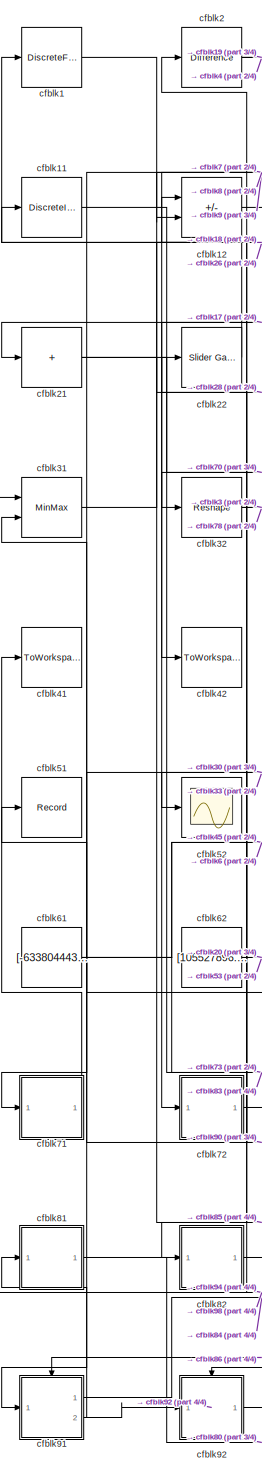
[diagram: root canvas - part 1/4, left side, full height]
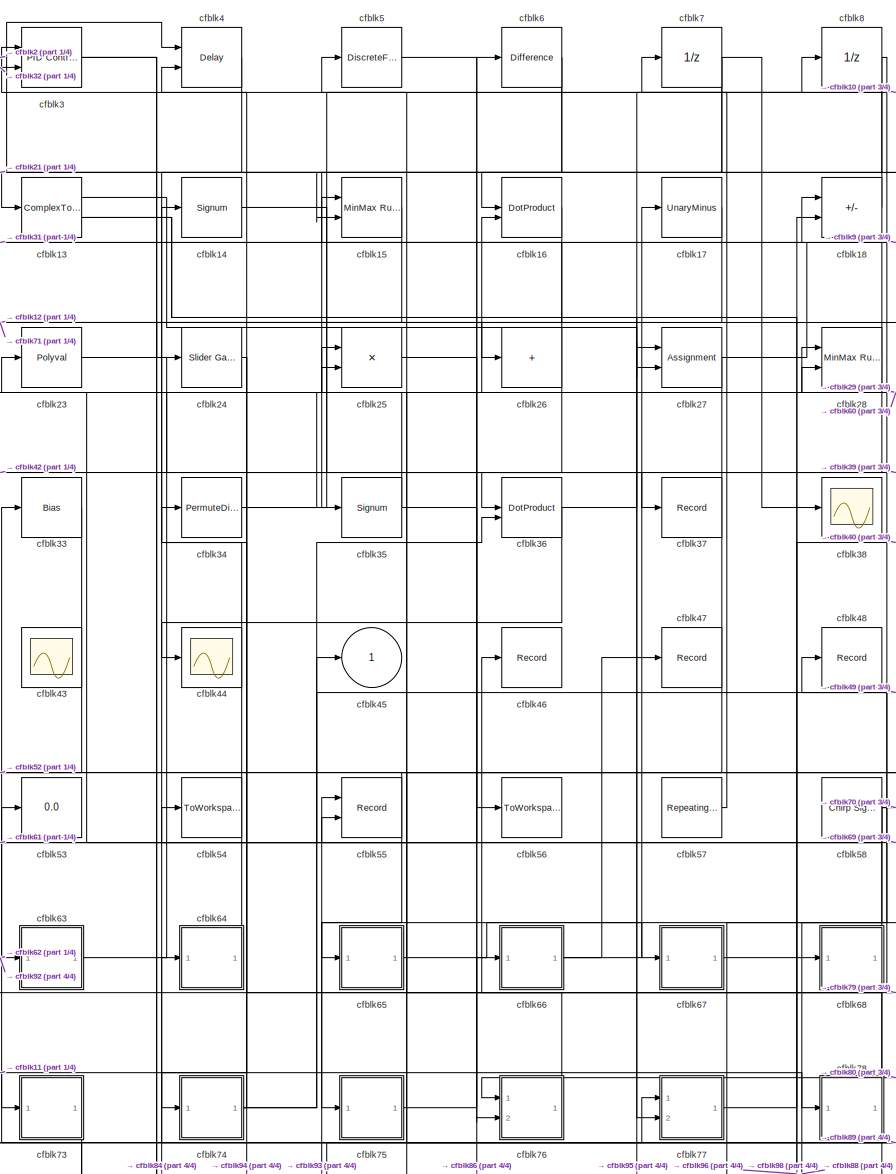
[diagram: root canvas - part 2/4, center side, full height]
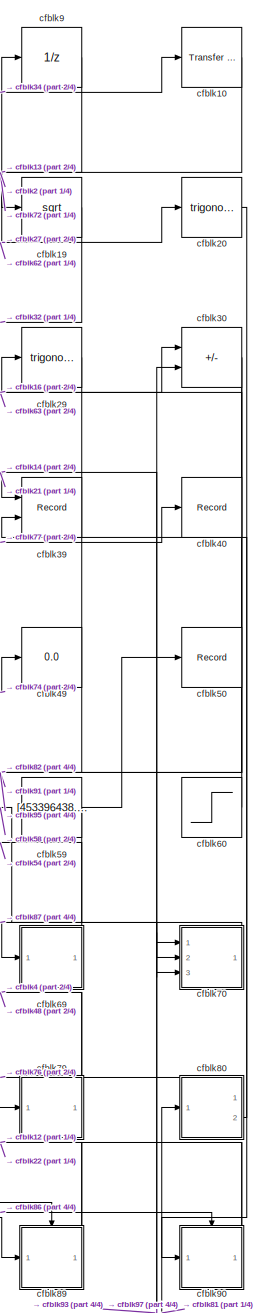
[diagram: root canvas - part 3/4, right side, full height]
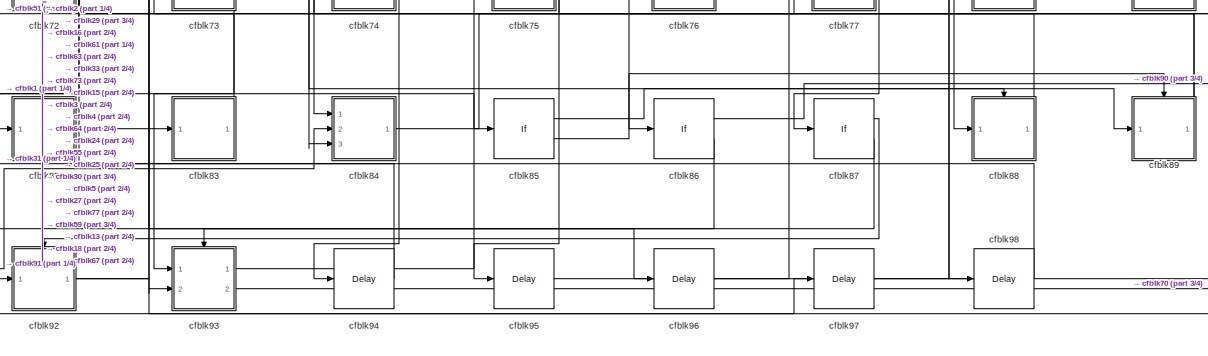
[diagram: root canvas - part 4/4, full width, bottom band]
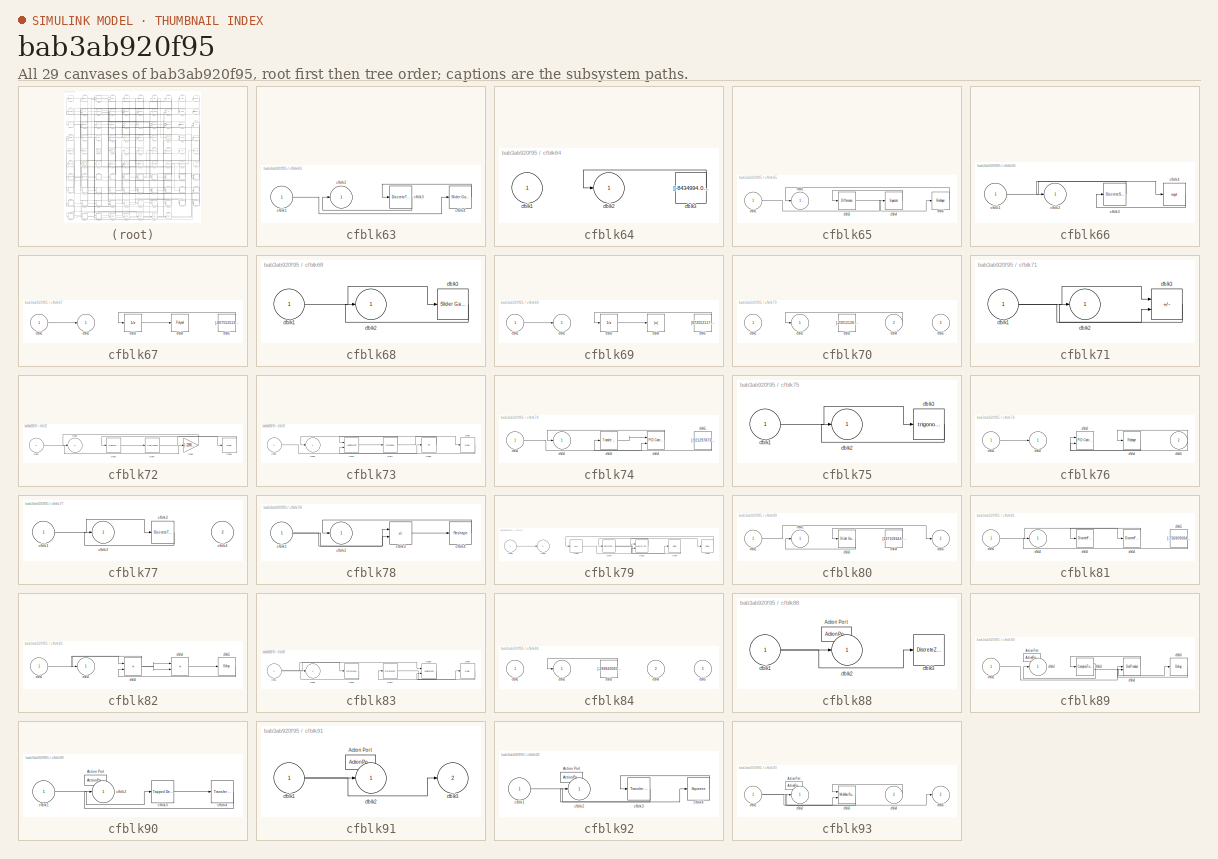
[diagram: thumbnail index - all 29 canvases of the model, root first then tree order]
MODEL slx_bab3ab920f95
KIND model
CONFIG AbsTol = auto
CONFIG EnableMultiTasking = off
CONFIG FixedStep = auto
CONFIG MaxStep = auto
CONFIG MinStep = auto
CONFIG RelTol = 1e-3
CONFIG SampleTimeConstraint = Unconstrained
CONFIG SolverName = VariableStepAuto
CONFIG StartTime = 0.0
CONFIG StopTime = 10.0
BLOCK [DiscreteFir] cfblk1
  InputPortMap = u0
  OutputPortMap = o0
  Ports = [1, 1]
  SampleTime = 1
BLOCK [Reference] cfblk10  REF=simulink/Discrete/Transfer Fcn
Real Zero
  Ports = [1, 1]
  SourceBlock = simulink/Discrete/Transfer Fcn\nReal Zero
  SourceProductBaseCode = SL
  SourceType = Transfer Fcn Real Zero
BLOCK [DiscreteIntegrator] cfblk11
  ICPrevOutput = DiscIntNeverNeededParam
  ICPrevScaledInput = DiscIntNeverNeededParam
  InitialConditionSetting = Auto
  Ports = [1, 1]
BLOCK [Sum] cfblk12
  IconShape = rectangular
  Inputs = +-
  Ports = [2, 1]
BLOCK [ComplexToRealImag] cfblk13
  Ports = [1, 2]
BLOCK [Signum] cfblk14
BLOCK [Reference] cfblk15  REF=simulink/Math
Operations/MinMax
Running
Resettable
  Ports = [2, 1]
  SourceBlock = simulink/Math\nOperations/MinMax\nRunning\nResettable
  SourceProductBaseCode = SL
  SourceType = MinMax Running Resettable
BLOCK [DotProduct] cfblk16
  OutDataTypeStr = Inherit: Inherit via internal rule
BLOCK [UnaryMinus] cfblk17
BLOCK [Sum] cfblk18
  IconShape = rectangular
  Inputs = +-
  Ports = [2, 1]
BLOCK [Sqrt] cfblk19
BLOCK [Reference] cfblk2  REF=simulink/Discrete/Difference
  Ports = [1, 1]
  SourceBlock = simulink/Discrete/Difference
  SourceProductBaseCode = SL
  SourceType = Difference
BLOCK [Trigonometry] cfblk20
  Ports = [1, 1]
BLOCK [Sum] cfblk21
  IconShape = rectangular
  Inputs = +
  Ports = [1, 1]
BLOCK [Reference] cfblk22  REF=simulink/Math
Operations/Slider
Gain
  Ports = [1, 1]
  SourceBlock = simulink/Math\nOperations/Slider\nGain
  SourceProductBaseCode = SL
  SourceType = Slider Gain
BLOCK [Polyval] cfblk23
  Coefs = [ +2.081618890e-019, -1.441693666e-014, +4.719686976e-010, -8.536869453e-006, +1.621573104e-001, -8.087801117e+001 ]
BLOCK [Reference] cfblk24  REF=simulink/Math
Operations/Slider
Gain
  Ports = [1, 1]
  SourceBlock = simulink/Math\nOperations/Slider\nGain
  SourceProductBaseCode = SL
  SourceType = Slider Gain
BLOCK [Product] cfblk25
  Inputs = **
  Ports = [2, 1]
BLOCK [Sum] cfblk26
  IconShape = rectangular
  Inputs = +
  Ports = [1, 1]
BLOCK [Assignment] cfblk27
  DiagnosticForDimensions = Warning
  IndexOptions = Index vector (dialog)
  Indices = 1
  OutputSizes = 1
  Ports = [2, 1]
BLOCK [Reference] cfblk28  REF=simulink/Math
Operations/MinMax
Running
Resettable
  Ports = [2, 1]
  SourceBlock = simulink/Math\nOperations/MinMax\nRunning\nResettable
  SourceProductBaseCode = SL
  SourceType = MinMax Running Resettable
BLOCK [Trigonometry] cfblk29
  Ports = [1, 1]
BLOCK [Reference] cfblk3  REF=slpidlib/PID Controller (2DOF)
  Ports = [2, 1]
  SourceBlock = slpidlib/PID Controller (2DOF)
  SourceProductBaseCode = SL
  SourceType = PID 2dof
BLOCK [Sum] cfblk30
  IconShape = rectangular
  Inputs = +-
  Ports = [2, 1]
BLOCK [MinMax] cfblk31
  Inputs = 2
  Ports = [2, 1]
BLOCK [Reshape] cfblk32
  Ports = [1, 1]
BLOCK [Bias] cfblk33
  Bias = [-708521417.509313]
  SaturateOnIntegerOverflow = off
BLOCK [PermuteDimensions] cfblk34
BLOCK [Signum] cfblk35
BLOCK [DotProduct] cfblk36
  OutDataTypeStr = Inherit: Inherit via internal rule
BLOCK [Record] cfblk37
  FileSettingsInternal = {"entries":[{"content":{"excelSettings":{"content":{},"type":"Streamout.ExcelSettings"}},"type":"Streamout.FileSettingStorage","uuid":"6aecb46b-7e3a-42a5-a532-44c38a0d56ca"}],"packageUris":["http://schema.mathworks.com/mf0/streamout_blocks/R2020a"],"version":"1.0"}
  Ports = [1]
  SignalsInternal = {"entries":[{"content":{"signals":[{"content":{"blockPath":["sampleModel294/cfblk37"],"channel":[],"dimensions":[1],"domain":"sampleModel294/cfblk37","lineColor":"#ff13a6","plots":[1],"port":1,"sid":[""],"signalID":12610,"signalName":"cfblk23"},"type":"RecordBlkView.Signal","uuid":"15af59c0-98d0-4b52-828e-53dac497fc87"}]},"type":"RecordBlkView.InputSignals","uuid":"b73e7cbd-e87e-4b80-9618-eb373318...<+98ch>
  VisualizationBindings = {"sparklinesplugin":{"info":[{"bindingParametersList":[],"subplotID":1}]}}
BLOCK [Scope] cfblk38
  Floating = off
  NumInputPorts = 1
  Ports = [1]
BLOCK [Record] cfblk39
  CompatibilityTag = XY
  FileSettingsInternal = {"entries":[{"content":{"excelSettings":{"content":{},"type":"Streamout.ExcelSettings"}},"type":"Streamout.FileSettingStorage","uuid":"2bb493f2-5c39-4865-b1a7-6070a2b50932"}],"packageUris":["http://schema.mathworks.com/mf0/streamout_blocks/R2020a"],"version":"1.0"}
  Layout = [1 1]
  Ports = [2]
  SignalsInternal = {"entries":[{"content":{"signals":[{"content":{"blockPath":["sampleModel294/cfblk39"],"channel":[],"dimensions":[1],"domain":"sampleModel294/cfblk39","lineColor":"#a2142f","plots":[1],"port":1,"sid":[""],"signalID":12614,"signalName":"cfblk14"},"type":"RecordBlkView.Signal","uuid":"45daaf46-2a0b-471e-a7b5-0b191f09f17a"},{"content":{"blockPath":["sampleModel294/cfblk39"],"channel":[],"dimensions":[...<+387ch>
  VisualizationBindings = {"xyplotplugin":{"info":[{"series":[{"bindingParametersList":[{"parameter":"X-Axis","signalID":12614,"signalName":"cfblk14"},{"parameter":"Y-Axis","signalID":12618,"signalName":"cfblk80:2"}],"seriesID":16195}],"subplotID":1}]}}
BLOCK [Delay] cfblk4
  InputPortMap = u0,e6
  Ports = [2, 1]
  SampleTime = 1
  ShowEnablePort = on
BLOCK [Record] cfblk40
  FileSettingsInternal = {"entries":[{"content":{"excelSettings":{"content":{},"type":"Streamout.ExcelSettings"}},"type":"Streamout.FileSettingStorage","uuid":"b2907d0f-a6a5-425f-99cf-7f8aa50df710"}],"packageUris":["http://schema.mathworks.com/mf0/streamout_blocks/R2020a"],"version":"1.0"}
  Ports = [1]
  SignalsInternal = {"entries":[{"content":{"signals":[{"content":{"blockPath":["sampleModel294/cfblk40"],"channel":[],"dimensions":[1],"domain":"sampleModel294/cfblk40","lineColor":"#0072bd","plots":[1],"port":1,"sid":[""],"signalID":12622,"signalName":"cfblk77"},"type":"RecordBlkView.Signal","uuid":"bb33c2fe-3e85-4b8c-a1c3-f1730c036eec"}]},"type":"RecordBlkView.InputSignals","uuid":"3f39614f-e5c9-4995-a26a-31c2ad2e...<+98ch>
  VisualizationBindings = {"sparklinesplugin":{"info":[{"bindingParametersList":[],"subplotID":1}]}}
BLOCK [ToWorkspace] cfblk41
  FixptAsFi = on
  MaxDataPoints = inf
  Ports = [1]
  SampleTime = -1
  SaveFormat = Timeseries
  VariableName = ktlnrjp
BLOCK [ToWorkspace] cfblk42
  FixptAsFi = on
  MaxDataPoints = inf
  Ports = [1]
  SampleTime = -1
  SaveFormat = Timeseries
  VariableName = sdwhgqs
BLOCK [Scope] cfblk43
  Floating = on
  NumInputPorts = 1
  Ports = []
BLOCK [Scope] cfblk44
  Floating = off
  NumInputPorts = 1
  Ports = [1]
BLOCK [Outport] cfblk45
BLOCK [Record] cfblk46
  FileSettingsInternal = {"entries":[{"content":{"excelSettings":{"content":{},"type":"Streamout.ExcelSettings"}},"type":"Streamout.FileSettingStorage","uuid":"cd732ad3-e538-45d9-afe5-a77d702ee905"}],"packageUris":["http://schema.mathworks.com/mf0/streamout_blocks/R2020a"],"version":"1.0"}
  Ports = [1]
  SignalsInternal = {"entries":[{"content":{"signals":[{"content":{"blockPath":["sampleModel294/cfblk46"],"channel":[],"dimensions":[1],"domain":"sampleModel294/cfblk46","lineColor":"#d95319","plots":[1],"port":1,"sid":[""],"signalID":12626,"signalName":"cfblk76"},"type":"RecordBlkView.Signal","uuid":"70741a1c-61cb-45a9-bdae-ba2ff29e5420"}]},"type":"RecordBlkView.InputSignals","uuid":"5321aa93-feca-455b-afcb-12fe4fd2...<+98ch>
  VisualizationBindings = {"sparklinesplugin":{"info":[{"bindingParametersList":[],"subplotID":1}]}}
BLOCK [Record] cfblk47
  FileSettingsInternal = {"entries":[{"content":{"excelSettings":{"content":{},"type":"Streamout.ExcelSettings"}},"type":"Streamout.FileSettingStorage","uuid":"f76ab7a1-73ab-47ed-b3a6-fe286ed2b7c9"}],"packageUris":["http://schema.mathworks.com/mf0/streamout_blocks/R2020a"],"version":"1.0"}
  Ports = [1]
  SignalsInternal = {"entries":[{"content":{"signals":[{"content":{"blockPath":["sampleModel294/cfblk47"],"channel":[],"dimensions":[1],"domain":"sampleModel294/cfblk47","lineColor":"#edb120","plots":[1],"port":1,"sid":[""],"signalID":12630,"signalName":"cfblk66"},"type":"RecordBlkView.Signal","uuid":"bfbfe2d6-6b31-4dad-96da-f0bbbe5ea954"}]},"type":"RecordBlkView.InputSignals","uuid":"1e42c149-03e4-4ab4-aa20-d210f904...<+98ch>
  VisualizationBindings = {"sparklinesplugin":{"info":[{"bindingParametersList":[],"subplotID":1}]}}
BLOCK [Record] cfblk48
  FileSettingsInternal = {"entries":[{"content":{"excelSettings":{"content":{},"type":"Streamout.ExcelSettings"}},"type":"Streamout.FileSettingStorage","uuid":"6cfbbc04-a925-4993-b607-e2fba4d550c3"}],"packageUris":["http://schema.mathworks.com/mf0/streamout_blocks/R2020a"],"version":"1.0"}
  Ports = [1]
  SignalsInternal = {"entries":[{"content":{"signals":[{"content":{"blockPath":["sampleModel294/cfblk48"],"channel":[],"dimensions":[1],"domain":"sampleModel294/cfblk48","lineColor":"#7e2f8e","plots":[1],"port":1,"sid":[""],"signalID":12634,"signalName":"cfblk79"},"type":"RecordBlkView.Signal","uuid":"5aff72a8-fe42-485d-8774-9a0131f30b30"}]},"type":"RecordBlkView.InputSignals","uuid":"8c8a5ed5-a484-4f3b-860e-beb86dd7...<+98ch>
  VisualizationBindings = {"sparklinesplugin":{"info":[{"bindingParametersList":[],"subplotID":1}]}}
BLOCK [Display] cfblk49
  Decimation = 1
  Ports = [1]
BLOCK [DiscreteFir] cfblk5
  InputPortMap = u0
  OutputPortMap = o0
  Ports = [1, 1]
  SampleTime = 1
BLOCK [Record] cfblk50
  FileSettingsInternal = {"entries":[{"content":{"excelSettings":{"content":{},"type":"Streamout.ExcelSettings"}},"type":"Streamout.FileSettingStorage","uuid":"f4a4ff15-b9fc-4301-9191-1d9923c924a8"}],"packageUris":["http://schema.mathworks.com/mf0/streamout_blocks/R2020a"],"version":"1.0"}
  Ports = [1]
  SignalsInternal = {"entries":[{"content":{"signals":[{"content":{"blockPath":["sampleModel294/cfblk50"],"channel":[],"dimensions":[1],"domain":"sampleModel294/cfblk50","lineColor":"#77ac30","plots":[1],"port":1,"sid":[""],"signalID":12638,"signalName":"cfblk59"},"type":"RecordBlkView.Signal","uuid":"75cd7700-a134-4a57-a005-3fc69aa79c35"}]},"type":"RecordBlkView.InputSignals","uuid":"2ed5b24f-e730-4d06-a240-75e588f6...<+98ch>
  VisualizationBindings = {"sparklinesplugin":{"info":[{"bindingParametersList":[],"subplotID":1}]}}
BLOCK [Record] cfblk51
  FileSettingsInternal = {"entries":[{"content":{"excelSettings":{"content":{},"type":"Streamout.ExcelSettings"}},"type":"Streamout.FileSettingStorage","uuid":"866b7732-f010-4150-946a-9813c49afba2"}],"packageUris":["http://schema.mathworks.com/mf0/streamout_blocks/R2020a"],"version":"1.0"}
  Ports = [1]
  SignalsInternal = {"entries":[{"content":{"signals":[{"content":{"blockPath":["sampleModel294/cfblk51"],"channel":[],"dimensions":[1],"domain":"sampleModel294/cfblk51","lineColor":"#4dbeee","plots":[1],"port":1,"sid":[""],"signalID":12642,"signalName":"cfblk83"},"type":"RecordBlkView.Signal","uuid":"32350658-b55d-479e-84c8-becb706a3288"}]},"type":"RecordBlkView.InputSignals","uuid":"f2652580-502e-4ec9-ac91-15a8f080...<+98ch>
  VisualizationBindings = {"sparklinesplugin":{"info":[{"bindingParametersList":[],"subplotID":1}]}}
BLOCK [Scope] cfblk52
  Floating = off
  NumInputPorts = 1
  Ports = [1]
BLOCK [Display] cfblk53
  Decimation = 1
  Ports = [1]
BLOCK [ToWorkspace] cfblk54
  FixptAsFi = on
  MaxDataPoints = inf
  Ports = [1]
  SampleTime = -1
  SaveFormat = Timeseries
  VariableName = abrlvhy
BLOCK [Record] cfblk55
  CompatibilityTag = XY
  FileSettingsInternal = {"entries":[{"content":{"excelSettings":{"content":{},"type":"Streamout.ExcelSettings"}},"type":"Streamout.FileSettingStorage","uuid":"835aa565-04d6-4761-bd2b-f5cb7ce2c9d7"}],"packageUris":["http://schema.mathworks.com/mf0/streamout_blocks/R2020a"],"version":"1.0"}
  Layout = [1 1]
  Ports = [2]
  SignalsInternal = {"entries":[{"content":{"signals":[{"content":{"blockPath":["sampleModel294/cfblk55"],"channel":[],"dimensions":[1],"domain":"sampleModel294/cfblk55","lineColor":"#a2142f","plots":[1],"port":1,"sid":[""],"signalID":12646,"signalName":"cfblk93:1"},"type":"RecordBlkView.Signal","uuid":"697700b5-573a-4fbd-952c-2c769defe491"},{"content":{"blockPath":["sampleModel294/cfblk55"],"channel":[],"dimensions"...<+387ch>
  VisualizationBindings = {"xyplotplugin":{"info":[{"series":[{"bindingParametersList":[{"parameter":"X-Axis","signalID":12646,"signalName":"cfblk93:1"},{"parameter":"Y-Axis","signalID":12650,"signalName":"cfblk58"}],"seriesID":24093}],"subplotID":1}]}}
BLOCK [ToWorkspace] cfblk56
  FixptAsFi = on
  MaxDataPoints = inf
  Ports = [1]
  SampleTime = -1
  SaveFormat = Timeseries
  VariableName = neffvfu
BLOCK [Reference] cfblk57  REF=simulink/Sources/Repeating
Sequence
  Ports = [0, 1]
  SourceBlock = simulink/Sources/Repeating\nSequence
  SourceProductBaseCode = SL
  SourceType = Repeating table
BLOCK [Reference] cfblk58  REF=simulink/Sources/Chirp Signal
  Ports = [0, 1]
  SourceBlock = simulink/Sources/Chirp Signal
  SourceProductBaseCode = SL
  SourceType = chirp
BLOCK [Constant] cfblk59
  SampleTime = 1
  Value = [453396438.145569]
BLOCK [Reference] cfblk6  REF=simulink/Discrete/Difference
  Ports = [1, 1]
  SourceBlock = simulink/Discrete/Difference
  SourceProductBaseCode = SL
  SourceType = Difference
BLOCK [Step] cfblk60
  After = [-887556736.076029]
  Before = [-442166404.499846]
  SampleTime = 0
  Time = [30.000000]
BLOCK [Constant] cfblk61
  SampleTime = 1
  Value = [-633804443.006598]
BLOCK [Constant] cfblk62
  SampleTime = 1
  Value = [105527896.819952]
BLOCK [SubSystem] cfblk63
  Ports = [1, 1]
  RequestExecContextInheritance = off
BLOCK [Inport] cfblk63/cfblk1
BLOCK [Outport] cfblk63/cfblk2
BLOCK [DiscreteTransferFcn] cfblk63/cfblk3
  InputPortMap = u0
  Ports = [1, 1]
  SampleTime = 1
BLOCK [Reference] cfblk63/cfblk4  REF=simulink/Math
Operations/Slider
Gain
  Ports = [1, 1]
  SourceBlock = simulink/Math\nOperations/Slider\nGain
  SourceProductBaseCode = SL
  SourceType = Slider Gain
BLOCK [SubSystem] cfblk64
  Ports = [1, 1]
  RequestExecContextInheritance = off
BLOCK [Inport] cfblk64/cfblk1
BLOCK [Outport] cfblk64/cfblk2
BLOCK [Constant] cfblk64/cfblk3
  SampleTime = 1
  Value = [-8434994.051030]
BLOCK [SubSystem] cfblk65
  Ports = [1, 1]
  RequestExecContextInheritance = off
BLOCK [Inport] cfblk65/cfblk1
BLOCK [Outport] cfblk65/cfblk2
BLOCK [Reference] cfblk65/cfblk3  REF=simulink/Discrete/Difference
  Ports = [1, 1]
  SourceBlock = simulink/Discrete/Difference
  SourceProductBaseCode = SL
  SourceType = Difference
BLOCK [Squeeze] cfblk65/cfblk4
BLOCK [Reshape] cfblk65/cfblk5
  Ports = [1, 1]
BLOCK [SubSystem] cfblk66
  Ports = [1, 1]
  RequestExecContextInheritance = off
BLOCK [Inport] cfblk66/cfblk1
BLOCK [Outport] cfblk66/cfblk2
BLOCK [DiscreteStateSpace] cfblk66/cfblk3
BLOCK [Sqrt] cfblk66/cfblk4
BLOCK [SubSystem] cfblk67
  Ports = [1, 1]
  RequestExecContextInheritance = off
BLOCK [Inport] cfblk67/cfblk1
BLOCK [Outport] cfblk67/cfblk2
BLOCK [UnitDelay] cfblk67/cfblk3
  HasFrameUpgradeWarning = on
BLOCK [Polyval] cfblk67/cfblk4
  Coefs = [ +2.081618890e-019, -1.441693666e-014, +4.719686976e-010, -8.536869453e-006, +1.621573104e-001, -8.087801117e+001 ]
BLOCK [Constant] cfblk67/cfblk5
  SampleTime = 1
  Value = [-807552513.520716]
BLOCK [SubSystem] cfblk68
  Ports = [1, 1]
  RequestExecContextInheritance = off
BLOCK [Inport] cfblk68/cfblk1
BLOCK [Outport] cfblk68/cfblk2
BLOCK [Reference] cfblk68/cfblk3  REF=simulink/Math
Operations/Slider
Gain
  Ports = [1, 1]
  SourceBlock = simulink/Math\nOperations/Slider\nGain
  SourceProductBaseCode = SL
  SourceType = Slider Gain
BLOCK [SubSystem] cfblk69
  Ports = [1, 1]
  RequestExecContextInheritance = off
BLOCK [Inport] cfblk69/cfblk1
BLOCK [Outport] cfblk69/cfblk2
BLOCK [UnitDelay] cfblk69/cfblk3
  HasFrameUpgradeWarning = on
BLOCK [Abs] cfblk69/cfblk4
  SaturateOnIntegerOverflow = off
BLOCK [Constant] cfblk69/cfblk5
  SampleTime = 1
  Value = [672052117.005879]
BLOCK [UnitDelay] cfblk7
  HasFrameUpgradeWarning = on
BLOCK [SubSystem] cfblk70
  Ports = [3, 1]
  RequestExecContextInheritance = off
BLOCK [Inport] cfblk70/cfblk1
BLOCK [Outport] cfblk70/cfblk2
BLOCK [Constant] cfblk70/cfblk3
  SampleTime = 1
  Value = [-23012128.032113]
BLOCK [Inport] cfblk70/cfblk4
  Port = 2
BLOCK [Inport] cfblk70/cfblk5
  Port = 3
BLOCK [SubSystem] cfblk71
  Ports = [1, 1]
  RequestExecContextInheritance = off
BLOCK [Inport] cfblk71/cfblk1
BLOCK [Outport] cfblk71/cfblk2
BLOCK [Sum] cfblk71/cfblk3
  IconShape = rectangular
  Inputs = +-
  Ports = [2, 1]
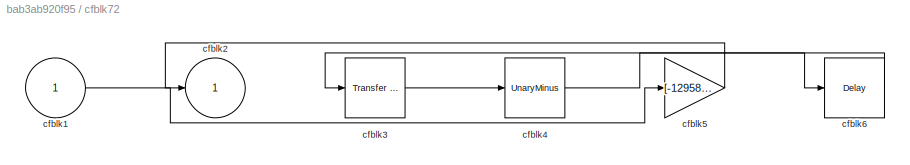
BLOCK [SubSystem] cfblk72
  Ports = [1, 1]
  RequestExecContextInheritance = off
BLOCK [Inport] cfblk72/cfblk1
BLOCK [Outport] cfblk72/cfblk2
BLOCK [Reference] cfblk72/cfblk3  REF=simulink/Discrete/Transfer Fcn
Lead or Lag
  Ports = [1, 1]
  SourceBlock = simulink/Discrete/Transfer Fcn\nLead or Lag
  SourceProductBaseCode = SL
  SourceType = Lead or Lag Compensator
BLOCK [UnaryMinus] cfblk72/cfblk4
BLOCK [Gain] cfblk72/cfblk5
  Gain = [-129581444.561554]
BLOCK [Delay] cfblk72/cfblk6
  InputPortMap = u0
  Ports = [1, 1]
  SampleTime = 1
BLOCK [SubSystem] cfblk73
  Ports = [1, 1]
  RequestExecContextInheritance = off
BLOCK [Inport] cfblk73/cfblk1
BLOCK [Outport] cfblk73/cfblk2
BLOCK [Assignment] cfblk73/cfblk3
  DiagnosticForDimensions = Warning
  IndexOptions = Index vector (dialog)
  Indices = 1
  OutputSizes = 1
  Ports = [2, 1]
BLOCK [Reshape] cfblk73/cfblk4
  Ports = [1, 1]
BLOCK [Product] cfblk73/cfblk5
  Inputs = *
  Ports = [1, 1]
BLOCK [Delay] cfblk73/cfblk6
  InputPortMap = u0
  Ports = [1, 1]
  SampleTime = 1
BLOCK [SubSystem] cfblk74
  Ports = [1, 1]
  RequestExecContextInheritance = off
BLOCK [Inport] cfblk74/cfblk1
BLOCK [Outport] cfblk74/cfblk2
BLOCK [Reference] cfblk74/cfblk3  REF=simulink/Discrete/Transfer Fcn
Lead or Lag
  Ports = [1, 1]
  SourceBlock = simulink/Discrete/Transfer Fcn\nLead or Lag
  SourceProductBaseCode = SL
  SourceType = Lead or Lag Compensator
BLOCK [Reference] cfblk74/cfblk4  REF=slpidlib/PID Controller (2DOF)
  Ports = [2, 1]
  SourceBlock = slpidlib/PID Controller (2DOF)
  SourceProductBaseCode = SL
  SourceType = PID 2dof
BLOCK [Constant] cfblk74/cfblk5
  SampleTime = 1
  Value = [-921297873.287770]
BLOCK [SubSystem] cfblk75
  Ports = [1, 1]
  RequestExecContextInheritance = off
BLOCK [Inport] cfblk75/cfblk1
BLOCK [Outport] cfblk75/cfblk2
BLOCK [Trigonometry] cfblk75/cfblk3
  Ports = [1, 1]
BLOCK [SubSystem] cfblk76
  Ports = [2, 1]
  RequestExecContextInheritance = off
BLOCK [Inport] cfblk76/cfblk1
BLOCK [Outport] cfblk76/cfblk2
BLOCK [Reference] cfblk76/cfblk3  REF=slpidlib/PID Controller (2DOF)
  Ports = [2, 1]
  SourceBlock = slpidlib/PID Controller (2DOF)
  SourceProductBaseCode = SL
  SourceType = PID 2dof
BLOCK [Reshape] cfblk76/cfblk4
  Ports = [1, 1]
BLOCK [Inport] cfblk76/cfblk5
  Port = 2
BLOCK [SubSystem] cfblk77
  Ports = [2, 1]
  RequestExecContextInheritance = off
BLOCK [Inport] cfblk77/cfblk1
BLOCK [Outport] cfblk77/cfblk2
BLOCK [DiscreteTransferFcn] cfblk77/cfblk3
  InputPortMap = u0
  Ports = [1, 1]
  SampleTime = 1
BLOCK [Inport] cfblk77/cfblk4
  Port = 2
BLOCK [SubSystem] cfblk78
  Ports = [1, 1]
  RequestExecContextInheritance = off
BLOCK [Inport] cfblk78/cfblk1
BLOCK [Outport] cfblk78/cfblk2
BLOCK [Sum] cfblk78/cfblk3
  IconShape = rectangular
  Inputs = +-
  Ports = [2, 1]
BLOCK [Reshape] cfblk78/cfblk4
  Ports = [1, 1]
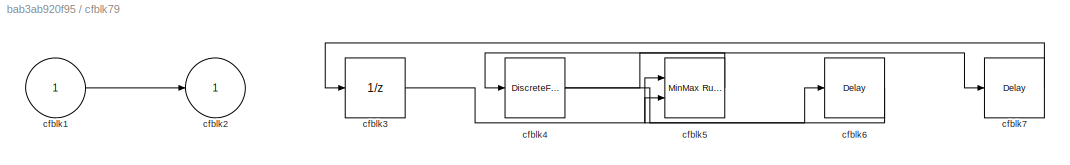
BLOCK [SubSystem] cfblk79
  Ports = [1, 1]
  RequestExecContextInheritance = off
BLOCK [Inport] cfblk79/cfblk1
BLOCK [Outport] cfblk79/cfblk2
BLOCK [UnitDelay] cfblk79/cfblk3
  HasFrameUpgradeWarning = on
BLOCK [DiscreteFilter] cfblk79/cfblk4
  InputPortMap = u0
  Ports = [1, 1]
  SampleTime = 1
BLOCK [Reference] cfblk79/cfblk5  REF=simulink/Math
Operations/MinMax
Running
Resettable
  Ports = [2, 1]
  SourceBlock = simulink/Math\nOperations/MinMax\nRunning\nResettable
  SourceProductBaseCode = SL
  SourceType = MinMax Running Resettable
BLOCK [Delay] cfblk79/cfblk6
  InputPortMap = u0
  Ports = [1, 1]
  SampleTime = 1
BLOCK [Delay] cfblk79/cfblk7
  InputPortMap = u0
  Ports = [1, 1]
  SampleTime = 1
BLOCK [UnitDelay] cfblk8
  HasFrameUpgradeWarning = on
BLOCK [SubSystem] cfblk80
  Ports = [1, 2]
  RequestExecContextInheritance = off
BLOCK [Inport] cfblk80/cfblk1
BLOCK [Outport] cfblk80/cfblk2
BLOCK [Reference] cfblk80/cfblk3  REF=simulink/Math
Operations/Slider
Gain
  Ports = [1, 1]
  SourceBlock = simulink/Math\nOperations/Slider\nGain
  SourceProductBaseCode = SL
  SourceType = Slider Gain
BLOCK [Constant] cfblk80/cfblk4
  SampleTime = 1
  Value = [137103644.899335]
BLOCK [Outport] cfblk80/cfblk5
  Port = 2
BLOCK [SubSystem] cfblk81
  Ports = [1, 1]
  RequestExecContextInheritance = off
BLOCK [Inport] cfblk81/cfblk1
BLOCK [Outport] cfblk81/cfblk2
BLOCK [DiscreteFir] cfblk81/cfblk3
  InputPortMap = u0
  OutputPortMap = o0
  Ports = [1, 1]
  SampleTime = 1
BLOCK [DiscreteFir] cfblk81/cfblk4
  InputPortMap = u0
  OutputPortMap = o0
  Ports = [1, 1]
  SampleTime = 1
BLOCK [Constant] cfblk81/cfblk5
  SampleTime = 1
  Value = [-736909084.103238]
BLOCK [SubSystem] cfblk82
  Ports = [1, 1]
  RequestExecContextInheritance = off
BLOCK [Inport] cfblk82/cfblk1
BLOCK [Outport] cfblk82/cfblk2
BLOCK [Product] cfblk82/cfblk3
  Inputs = **
  Ports = [2, 1]
BLOCK [Product] cfblk82/cfblk4
  Inputs = **
  Ports = [2, 1]
BLOCK [Delay] cfblk82/cfblk5
  InputPortMap = u0
  Ports = [1, 1]
  SampleTime = 1
BLOCK [SubSystem] cfblk83
  Ports = [1, 1]
  RequestExecContextInheritance = off
BLOCK [Inport] cfblk83/cfblk1
BLOCK [Outport] cfblk83/cfblk2
BLOCK [Reference] cfblk83/cfblk3  REF=simulink/Discrete/Difference
  Ports = [1, 1]
  SourceBlock = simulink/Discrete/Difference
  SourceProductBaseCode = SL
  SourceType = Difference
BLOCK [Reference] cfblk83/cfblk4  REF=simulink/Discrete/Difference
  Ports = [1, 1]
  SourceBlock = simulink/Discrete/Difference
  SourceProductBaseCode = SL
  SourceType = Difference
BLOCK [Assignment] cfblk83/cfblk5
  DiagnosticForDimensions = Warning
  IndexOptions = Index vector (dialog)
  Indices = 1
  OutputSizes = 1
  Ports = [2, 1]
BLOCK [Delay] cfblk83/cfblk6
  InputPortMap = u0
  Ports = [1, 1]
  SampleTime = 1
BLOCK [SubSystem] cfblk84
  Ports = [3, 1]
  RequestExecContextInheritance = off
BLOCK [Inport] cfblk84/cfblk1
BLOCK [Outport] cfblk84/cfblk2
BLOCK [Constant] cfblk84/cfblk3
  SampleTime = 1
  Value = [-289843065.566403]
BLOCK [Inport] cfblk84/cfblk4
  Port = 2
BLOCK [Inport] cfblk84/cfblk5
  Port = 3
BLOCK [If] cfblk85
  IfExpression = u1 >= 0
  Ports = [1, 2]
  SampleTime = 1
BLOCK [If] cfblk86
  IfExpression = u1 >= 0
  Ports = [1, 2]
  SampleTime = 1
BLOCK [If] cfblk87
  IfExpression = u1 >= 0
  Ports = [1, 2]
  SampleTime = 1
BLOCK [SubSystem] cfblk88
  Ports = [1, 1, 0, 0, 0, 0, 0, 1]
  RequestExecContextInheritance = off
  TreatAsAtomicUnit = on
BLOCK [ActionPort] cfblk88/Action Port
  ActionPortLabel = if(u1 >= 0)
BLOCK [Inport] cfblk88/cfblk1
BLOCK [Outport] cfblk88/cfblk2
BLOCK [DiscreteZeroPole] cfblk88/cfblk3
  Gain = 1
  Poles = [0 0.5]
  SampleTime = -1
BLOCK [SubSystem] cfblk89
  Ports = [1, 1, 0, 0, 0, 0, 0, 1]
  RequestExecContextInheritance = off
  TreatAsAtomicUnit = on
BLOCK [ActionPort] cfblk89/Action Port
  ActionPortLabel = else
BLOCK [Inport] cfblk89/cfblk1
BLOCK [Outport] cfblk89/cfblk2
BLOCK [ComplexToRealImag] cfblk89/cfblk3
  Ports = [1, 2]
BLOCK [DotProduct] cfblk89/cfblk4
  OutDataTypeStr = Inherit: Inherit via internal rule
BLOCK [Delay] cfblk89/cfblk5
  InputPortMap = u0
  Ports = [1, 1]
BLOCK [UnitDelay] cfblk9
  HasFrameUpgradeWarning = on
BLOCK [SubSystem] cfblk90
  Ports = [1, 1, 0, 0, 0, 0, 0, 1]
  RequestExecContextInheritance = off
  TreatAsAtomicUnit = on
BLOCK [ActionPort] cfblk90/Action Port
  ActionPortLabel = if(u1 >= 0)
BLOCK [Inport] cfblk90/cfblk1
BLOCK [Outport] cfblk90/cfblk2
BLOCK [Reference] cfblk90/cfblk3  REF=simulink/Discrete/Tapped Delay
  Ports = [1, 1]
  SourceBlock = simulink/Discrete/Tapped Delay
  SourceProductBaseCode = SL
  SourceType = Tapped Delay Line
BLOCK [Reference] cfblk90/cfblk4  REF=simulink/Discrete/Transfer Fcn
Real Zero
  Ports = [1, 1]
  SourceBlock = simulink/Discrete/Transfer Fcn\nReal Zero
  SourceProductBaseCode = SL
  SourceType = Transfer Fcn Real Zero
BLOCK [SubSystem] cfblk91
  Ports = [1, 2, 0, 0, 0, 0, 0, 1]
  RequestExecContextInheritance = off
  TreatAsAtomicUnit = on
BLOCK [ActionPort] cfblk91/Action Port
  ActionPortLabel = else
BLOCK [Inport] cfblk91/cfblk1
BLOCK [Outport] cfblk91/cfblk2
BLOCK [Outport] cfblk91/cfblk3
  Port = 2
BLOCK [SubSystem] cfblk92
  Ports = [1, 1, 0, 0, 0, 0, 0, 1]
  RequestExecContextInheritance = off
  TreatAsAtomicUnit = on
BLOCK [ActionPort] cfblk92/Action Port
  ActionPortLabel = if(u1 >= 0)
BLOCK [Inport] cfblk92/cfblk1
BLOCK [Outport] cfblk92/cfblk2
BLOCK [Reference] cfblk92/cfblk3  REF=simulink/Discrete/Transfer Fcn
Lead or Lag
  Ports = [1, 1]
  SourceBlock = simulink/Discrete/Transfer Fcn\nLead or Lag
  SourceProductBaseCode = SL
  SourceType = Lead or Lag Compensator
BLOCK [Squeeze] cfblk92/cfblk4
BLOCK [SubSystem] cfblk93
  Ports = [2, 2, 0, 0, 0, 0, 0, 1]
  RequestExecContextInheritance = off
  TreatAsAtomicUnit = on
BLOCK [ActionPort] cfblk93/Action Port
  ActionPortLabel = else
BLOCK [Inport] cfblk93/cfblk1
BLOCK [Outport] cfblk93/cfblk2
BLOCK [Reference] cfblk93/cfblk3  REF=simulink/Math
Operations/MinMax
Running
Resettable
  Ports = [2, 1]
  SourceBlock = simulink/Math\nOperations/MinMax\nRunning\nResettable
  SourceProductBaseCode = SL
  SourceType = MinMax Running Resettable
BLOCK [Inport] cfblk93/cfblk4
  Port = 2
BLOCK [Outport] cfblk93/cfblk5
  Port = 2
BLOCK [Delay] cfblk94
  InputPortMap = u0
  Ports = [1, 1]
  SampleTime = 1
BLOCK [Delay] cfblk95
  InputPortMap = u0
  Ports = [1, 1]
  SampleTime = 1
BLOCK [Delay] cfblk96
  InputPortMap = u0
  Ports = [1, 1]
  SampleTime = 1
BLOCK [Delay] cfblk97
  InputPortMap = u0
  Ports = [1, 1]
  SampleTime = 1
BLOCK [Delay] cfblk98
  InputPortMap = u0
  Ports = [1, 1]
  SampleTime = 1
LINE cfblk10:1 -> cfblk13:1
LINE cfblk11:1 -> cfblk73:1
LINE cfblk12:1 -> cfblk26:1
LINE cfblk13:1 -> cfblk27:2
NET cfblk13:2 -> cfblk77:2, cfblk98:1
LINE cfblk14:1 -> cfblk39:1
LINE cfblk15:1 -> cfblk84:3
LINE cfblk16:1 -> cfblk93:2
LINE cfblk17:1 -> cfblk71:1
LINE cfblk18:1 -> cfblk3:1
LINE cfblk19:1 -> cfblk32:1
LINE cfblk1:1 -> cfblk85:1
LINE cfblk20:1 -> cfblk90:1
NET cfblk21:1 -> cfblk28:2, cfblk70:2
LINE cfblk22:1 -> cfblk1:1
LINE cfblk23:1 -> cfblk37:1
NET cfblk24:1 -> cfblk74:1, cfblk94:1
LINE cfblk25:1 -> cfblk56:1
NET cfblk26:1 -> cfblk11:1, cfblk42:1
NET cfblk27:1 -> cfblk75:1, cfblk9:1
NET cfblk28:1 -> cfblk15:1, cfblk36:1
LINE cfblk29:1 -> cfblk82:1
NET cfblk2:1 -> cfblk19:1, cfblk4:1
NET cfblk30:1 -> cfblk91:1, cfblk95:1
LINE cfblk31:1 -> cfblk18:1
NET cfblk32:1 -> cfblk3:2, cfblk78:1
LINE cfblk33:1 -> cfblk52:1
NET cfblk34:1 -> cfblk10:1, cfblk28:1
NET cfblk35:1 -> cfblk25:1, cfblk76:2
NET cfblk36:1 -> cfblk44:1, cfblk8:1
NET cfblk3:1 -> cfblk24:1, cfblk89:1
LINE cfblk4:1 -> cfblk84:1
LINE cfblk57:1 -> cfblk7:1
NET cfblk58:1 -> cfblk55:2, cfblk65:1, cfblk70:3, cfblk79:1
NET cfblk59:1 -> cfblk50:1, cfblk87:1
LINE cfblk5:1 -> cfblk86:1
LINE cfblk60:1 -> cfblk16:2
NET cfblk61:1 -> cfblk45:1, cfblk6:1, cfblk83:1
NET cfblk62:1 -> cfblk20:1, cfblk53:1
LINE cfblk63/cfblk1:1 -> cfblk63/cfblk4:1
LINE cfblk63/cfblk3:1 -> cfblk63/cfblk2:1
LINE cfblk63/cfblk4:1 -> cfblk63/cfblk3:1
LINE cfblk63:1 -> cfblk29:1
LINE cfblk64/cfblk3:1 -> cfblk64/cfblk2:1
LINE cfblk64:1 -> cfblk14:1
LINE cfblk65/cfblk1:1 -> cfblk65/cfblk4:1
LINE cfblk65/cfblk3:1 -> cfblk65/cfblk5:1
LINE cfblk65/cfblk4:1 -> cfblk65/cfblk3:1
LINE cfblk65/cfblk5:1 -> cfblk65/cfblk2:1
LINE cfblk65:1 -> cfblk67:1
LINE cfblk66/cfblk1:1 -> cfblk66/cfblk4:1
LINE cfblk66/cfblk3:1 -> cfblk66/cfblk2:1
LINE cfblk66/cfblk4:1 -> cfblk66/cfblk3:1
NET cfblk66:1 -> cfblk17:1, cfblk47:1
LINE cfblk67/cfblk1:1 -> cfblk67/cfblk2:1
LINE cfblk67/cfblk3:1 -> cfblk67/cfblk4:1
LINE cfblk67/cfblk5:1 -> cfblk67/cfblk3:1
LINE cfblk67:1 -> cfblk88:1
LINE cfblk68/cfblk1:1 -> cfblk68/cfblk3:1
LINE cfblk68/cfblk3:1 -> cfblk68/cfblk2:1
LINE cfblk68:1 -> cfblk23:1
LINE cfblk69/cfblk1:1 -> cfblk69/cfblk2:1
LINE cfblk69/cfblk3:1 -> cfblk69/cfblk4:1
LINE cfblk69/cfblk5:1 -> cfblk69/cfblk3:1
LINE cfblk69:1 -> cfblk54:1
NET cfblk6:1 -> cfblk15:2, cfblk35:1
LINE cfblk70/cfblk4:1 -> cfblk70/cfblk2:1
LINE cfblk70:1 -> cfblk69:1
NET cfblk71/cfblk1:1 -> cfblk71/cfblk3:1, cfblk71/cfblk3:2
LINE cfblk71/cfblk3:1 -> cfblk71/cfblk2:1
LINE cfblk71:1 -> cfblk41:1
LINE cfblk72/cfblk1:1 -> cfblk72/cfblk5:1
LINE cfblk72/cfblk3:1 -> cfblk72/cfblk4:1
LINE cfblk72/cfblk4:1 -> cfblk72/cfblk6:1
LINE cfblk72/cfblk5:1 -> cfblk72/cfblk2:1
LINE cfblk72/cfblk6:1 -> cfblk72/cfblk3:1
LINE cfblk72:1 -> cfblk30:1
LINE cfblk73/cfblk1:1 -> cfblk73/cfblk5:1
LINE cfblk73/cfblk3:1 -> cfblk73/cfblk4:1
NET cfblk73/cfblk4:1 -> cfblk73/cfblk2:1, cfblk73/cfblk6:1
LINE cfblk73/cfblk5:1 -> cfblk73/cfblk3:1
LINE cfblk73/cfblk6:1 -> cfblk73/cfblk3:2
LINE cfblk73:1 -> cfblk93:1
LINE cfblk74/cfblk1:1 -> cfblk74/cfblk4:2
LINE cfblk74/cfblk3:1 -> cfblk74/cfblk4:1
LINE cfblk74/cfblk4:1 -> cfblk74/cfblk2:1
LINE cfblk74/cfblk5:1 -> cfblk74/cfblk3:1
NET cfblk74:1 -> cfblk34:1, cfblk36:2, cfblk49:1
LINE cfblk75/cfblk1:1 -> cfblk75/cfblk3:1
LINE cfblk75/cfblk3:1 -> cfblk75/cfblk2:1
LINE cfblk75:1 -> cfblk66:1
LINE cfblk76/cfblk1:1 -> cfblk76/cfblk2:1
LINE cfblk76/cfblk4:1 -> cfblk76/cfblk3:1
NET cfblk76/cfblk5:1 -> cfblk76/cfblk3:2, cfblk76/cfblk4:1
LINE cfblk76:1 -> cfblk46:1
LINE cfblk77/cfblk1:1 -> cfblk77/cfblk3:1
LINE cfblk77/cfblk3:1 -> cfblk77/cfblk2:1
LINE cfblk77:1 -> cfblk40:1
NET cfblk78/cfblk1:1 -> cfblk78/cfblk3:1, cfblk78/cfblk3:2
LINE cfblk78/cfblk3:1 -> cfblk78/cfblk4:1
LINE cfblk78/cfblk4:1 -> cfblk78/cfblk2:1
NET cfblk78:1 -> cfblk31:2, cfblk5:1
LINE cfblk79/cfblk1:1 -> cfblk79/cfblk2:1
LINE cfblk79/cfblk3:1 -> cfblk79/cfblk5:1
NET cfblk79/cfblk4:1 -> cfblk79/cfblk6:1, cfblk79/cfblk7:1
LINE cfblk79/cfblk5:1 -> cfblk79/cfblk4:1
LINE cfblk79/cfblk6:1 -> cfblk79/cfblk5:2
LINE cfblk79/cfblk7:1 -> cfblk79/cfblk3:1
NET cfblk79:1 -> cfblk48:1, cfblk4:2
NET cfblk7:1 -> cfblk16:1, cfblk21:1, cfblk38:1
LINE cfblk80/cfblk1:1 -> cfblk80/cfblk5:1
LINE cfblk80/cfblk3:1 -> cfblk80/cfblk2:1
LINE cfblk80/cfblk4:1 -> cfblk80/cfblk3:1
LINE cfblk80:1 -> cfblk76:1
LINE cfblk80:2 -> cfblk39:2
LINE cfblk81/cfblk1:1 -> cfblk81/cfblk4:1
LINE cfblk81/cfblk4:1 -> cfblk81/cfblk3:1
LINE cfblk81/cfblk5:1 -> cfblk81/cfblk2:1
LINE cfblk81:1 -> cfblk80:1
LINE cfblk82/cfblk1:1 -> cfblk82/cfblk3:1
NET cfblk82/cfblk3:1 -> cfblk82/cfblk2:1, cfblk82/cfblk4:1, cfblk82/cfblk4:2
LINE cfblk82/cfblk4:1 -> cfblk82/cfblk5:1
LINE cfblk82/cfblk5:1 -> cfblk82/cfblk3:2
LINE cfblk82:1 -> cfblk96:1
NET cfblk83/cfblk1:1 -> cfblk83/cfblk3:1, cfblk83/cfblk5:1
LINE cfblk83/cfblk3:1 -> cfblk83/cfblk2:1
LINE cfblk83/cfblk4:1 -> cfblk83/cfblk6:1
LINE cfblk83/cfblk5:1 -> cfblk83/cfblk4:1
LINE cfblk83/cfblk6:1 -> cfblk83/cfblk5:2
LINE cfblk83:1 -> cfblk51:1
LINE cfblk84/cfblk3:1 -> cfblk84/cfblk2:1
LINE cfblk84:1 -> cfblk77:1
LINE cfblk85:1 -> cfblk88:ifaction
LINE cfblk85:2 -> cfblk89:ifaction
LINE cfblk86:1 -> cfblk90:ifaction
LINE cfblk86:2 -> cfblk91:ifaction
LINE cfblk87:1 -> cfblk92:ifaction
LINE cfblk87:2 -> cfblk93:ifaction
NET cfblk88/cfblk1:1 -> cfblk88/cfblk2:1, cfblk88/cfblk3:1
LINE cfblk88:1 -> cfblk64:1
LINE cfblk89/cfblk1:1 -> cfblk89/cfblk4:1
LINE cfblk89/cfblk3:1 -> cfblk89/cfblk2:1
LINE cfblk89/cfblk3:2 -> cfblk89/cfblk5:1
LINE cfblk89/cfblk4:1 -> cfblk89/cfblk3:1
LINE cfblk89/cfblk5:1 -> cfblk89/cfblk4:2
NET cfblk89:1 -> cfblk25:2, cfblk33:1
NET cfblk8:1 -> cfblk12:2, cfblk68:1
LINE cfblk90/cfblk1:1 -> cfblk90/cfblk3:1
LINE cfblk90/cfblk3:1 -> cfblk90/cfblk4:1
LINE cfblk90/cfblk4:1 -> cfblk90/cfblk2:1
NET cfblk90:1 -> cfblk12:1, cfblk22:1
NET cfblk91/cfblk1:1 -> cfblk91/cfblk2:1, cfblk91/cfblk3:1
LINE cfblk91:1 -> cfblk84:2
NET cfblk91:2 -> cfblk81:1, cfblk92:1
LINE cfblk92/cfblk1:1 -> cfblk92/cfblk4:1
LINE cfblk92/cfblk3:1 -> cfblk92/cfblk2:1
LINE cfblk92/cfblk4:1 -> cfblk92/cfblk3:1
NET cfblk92:1 -> cfblk63:1, cfblk97:1
NET cfblk93/cfblk1:1 -> cfblk93/cfblk3:2, cfblk93/cfblk5:1
LINE cfblk93/cfblk3:1 -> cfblk93/cfblk2:1
LINE cfblk93/cfblk4:1 -> cfblk93/cfblk3:1
LINE cfblk93:1 -> cfblk55:1
LINE cfblk93:2 -> cfblk70:1
LINE cfblk94:1 -> cfblk31:1
LINE cfblk95:1 -> cfblk27:1
LINE cfblk96:1 -> cfblk18:2
LINE cfblk97:1 -> cfblk30:2
LINE cfblk98:1 -> cfblk2:1
LINE cfblk9:1 -> cfblk72:1
note: NET lines group one-source signal fan-out (src -> all destinations, sorted); 1:1 wires keep LINE
